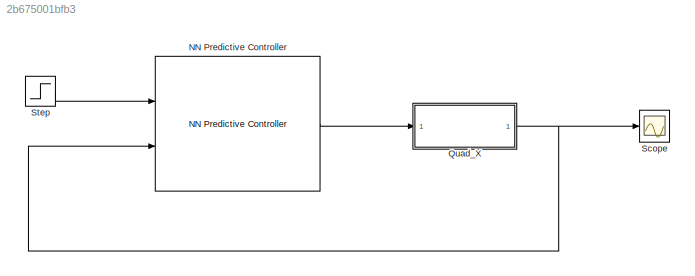
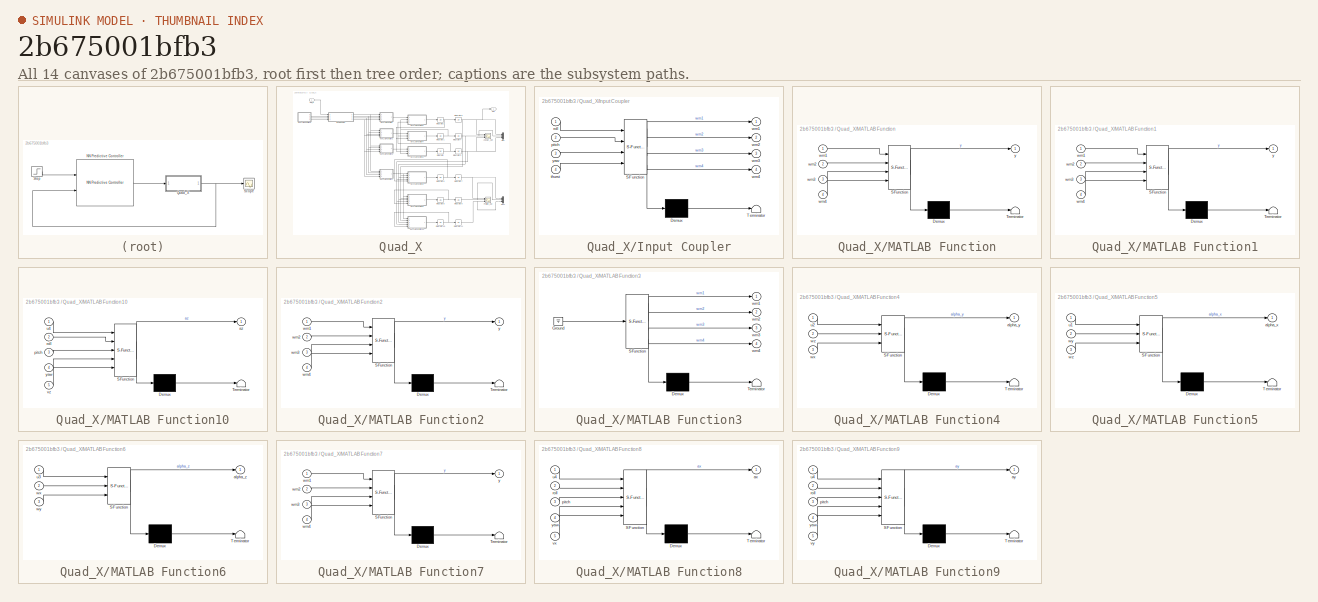
[diagram: thumbnail index - all 14 canvases of the model, root first then tree order]
MODEL slx_2b675001bfb3
KIND model
BLOCK [Reference] NN Predictive Controller  REF=neural/Control Systems/NN Predictive Controller
  B1 = [-0.033707570801635167;-0.47549596614413381;0.94594550137361211;-0.044475986989229097;-0.0056021811866312742;0.20269094438666568;0.029333788248414833;0.034120233153385485;-0.10477809021971642;0.022819986520979749;-0.00087034047782172917;0.071614354293789095;0.02306375039488753]
  B2 = 0.33893159470915019
  IW = [0.039998660620629928 0.054319765832510608;-0.010503535501637755 -0.019695859789655188;-0.017929844429394222 -0.017987719633573145;-0.15873458599410625 -0.23890856720996989;-0.13484413942787421 -0.045556897178475317;0.55199711251037986 0.19357513454006872;-0.056128979769489128 -0.058493866282012606;-0.050041935554247574 -0.058676958961361075;-0.51342226469245844 -0.16103467717091358;0.094238526031...<+157ch>
  LW1_2 = [-0.043314732256269188;-1.3295460339849443;-1.0162121533972843;0.0050899148605056252;-0.50042099070870627;-0.29434622763017254;0.035023037939621651;0.0388239235362587;0.0078823202382635755;-0.032637242251995033;-0.33184722281130602;0.017985074754463665;0.032846785601753907]
  LW2_1 = [-0.10107553326643129 -0.43152252561111648 -0.7651203191331083 -0.097639060643939693 -0.42820246096364367 -0.13049858893320174 0.1167072490731577 0.11487703456844785 -0.27200029396797054 -0.12790647778402289 0.26845125589846164 0.14095111255833445 0.09180920326466567]
  N2 = 4
  Ni = 2
  Nj = 1
  Normalize = 1
  Nu = 3
  Ports = [2, 1]
  S1 = 13
  SourceBlock = neural/Control Systems/NN Predictive Controller
  SourceType = NN Predictive Controller
  Ts = 0.01
  Use_Previous_Weights = 1
  Use_Testing = 1
  Use_validation = 1
  alpha = 0.002
  csrchfun = csrchbac
  epochs = 800
  limit_output = 0
  max_i = 1
  max_i_int = 0.1
  max_output = Inf
  maxiter = 2
  maxp = 0.99718677655187538
  maxt = 0.99718677655187538
  min_i = -1
  min_i_int = 0.005
  min_output = -Inf
  minp = -0.99375627128259669
  mint = -11.476882979154116
  rho = 0.05
  sam_training = 800
  sim_file = quad_x_model
  trainfun = trainbr
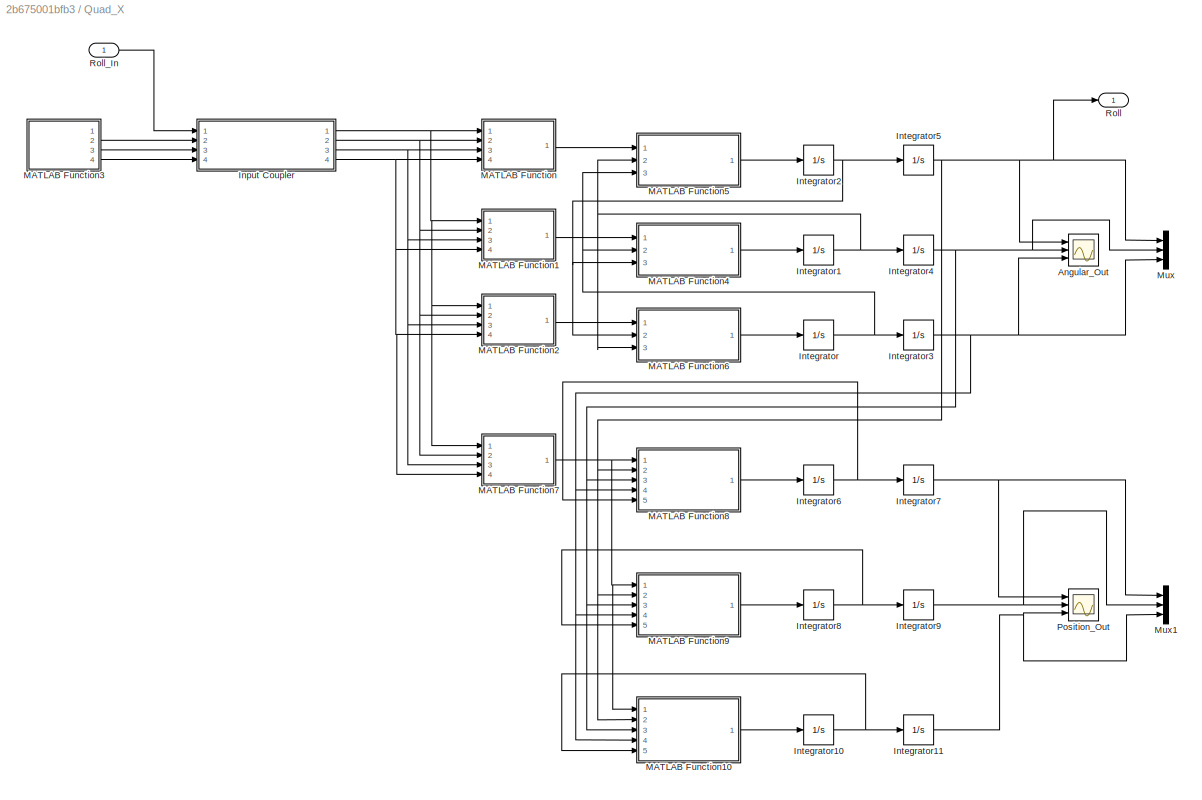
BLOCK [SubSystem] Quad_X
  Ports = [1, 1]
  RequestExecContextInheritance = off
  TreatAsAtomicUnit = on
BLOCK [Scope] Quad_X/Angular_Out
  Floating = off
  NumInputPorts = 3
  Ports = [3]
  ShowLegends = off
  YMax = 5~5~5
  YMin = -5~-5~-5
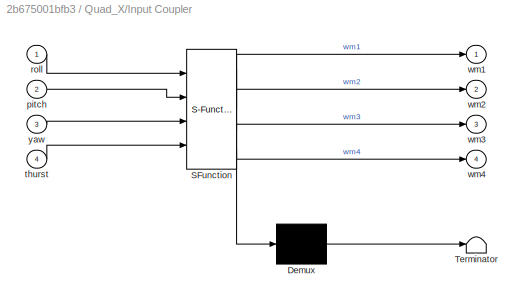
BLOCK [SubSystem] Quad_X/Input Coupler
  ErrorFcn = Stateflow.Translate.translate
  PermitHierarchicalResolution = ExplicitOnly
  Ports = [4, 4]
  RequestExecContextInheritance = off
  SFBlockType = MATLAB Function
  TreatAsAtomicUnit = on
BLOCK [Demux] Quad_X/Input Coupler/ Demux 
  Outputs = 1
  Ports = [1, 1]
BLOCK [S-Function] Quad_X/Input Coupler/ SFunction 
  EnableBusSupport = on
  FunctionName = sf_sfun
  PortCounts = [4 5]
  Ports = [4, 5]
  Tag = Stateflow S-Function quad_x_train 4
BLOCK [Terminator] Quad_X/Input Coupler/ Terminator 
BLOCK [Inport] Quad_X/Input Coupler/pitch
  IconDisplay = Port number
  Port = 2
BLOCK [Inport] Quad_X/Input Coupler/roll
  IconDisplay = Port number
BLOCK [Inport] Quad_X/Input Coupler/thurst
  IconDisplay = Port number
  Port = 4
BLOCK [Outport] Quad_X/Input Coupler/wm1
  IconDisplay = Port number
BLOCK [Outport] Quad_X/Input Coupler/wm2
  IconDisplay = Port number
  Port = 2
BLOCK [Outport] Quad_X/Input Coupler/wm3
  IconDisplay = Port number
  Port = 3
BLOCK [Outport] Quad_X/Input Coupler/wm4
  IconDisplay = Port number
  Port = 4
BLOCK [Inport] Quad_X/Input Coupler/yaw
  IconDisplay = Port number
  Port = 3
BLOCK [Integrator] Quad_X/Integrator
  Ports = [1, 1]
BLOCK [Integrator] Quad_X/Integrator1
  Ports = [1, 1]
BLOCK [Integrator] Quad_X/Integrator10
  Ports = [1, 1]
BLOCK [Integrator] Quad_X/Integrator11
  Ports = [1, 1]
BLOCK [Integrator] Quad_X/Integrator2
  Ports = [1, 1]
BLOCK [Integrator] Quad_X/Integrator3
  Ports = [1, 1]
BLOCK [Integrator] Quad_X/Integrator4
  Ports = [1, 1]
BLOCK [Integrator] Quad_X/Integrator5
  Ports = [1, 1]
BLOCK [Integrator] Quad_X/Integrator6
  Ports = [1, 1]
BLOCK [Integrator] Quad_X/Integrator7
  Ports = [1, 1]
BLOCK [Integrator] Quad_X/Integrator8
  Ports = [1, 1]
BLOCK [Integrator] Quad_X/Integrator9
  Ports = [1, 1]
BLOCK [SubSystem] Quad_X/MATLAB Function
  ErrorFcn = Stateflow.Translate.translate
  PermitHierarchicalResolution = ExplicitOnly
  Ports = [4, 1]
  RequestExecContextInheritance = off
  SFBlockType = MATLAB Function
  TreatAsAtomicUnit = on
BLOCK [Demux] Quad_X/MATLAB Function/ Demux 
  Outputs = 1
  Ports = [1, 1]
BLOCK [S-Function] Quad_X/MATLAB Function/ SFunction 
  EnableBusSupport = on
  FunctionName = sf_sfun
  PortCounts = [4 2]
  Ports = [4, 2]
  Tag = Stateflow S-Function quad_x_train 2
BLOCK [Terminator] Quad_X/MATLAB Function/ Terminator 
BLOCK [Inport] Quad_X/MATLAB Function/wm1
  IconDisplay = Port number
BLOCK [Inport] Quad_X/MATLAB Function/wm2
  IconDisplay = Port number
  Port = 2
BLOCK [Inport] Quad_X/MATLAB Function/wm3
  IconDisplay = Port number
  Port = 3
BLOCK [Inport] Quad_X/MATLAB Function/wm4
  IconDisplay = Port number
  Port = 4
BLOCK [Outport] Quad_X/MATLAB Function/y
  IconDisplay = Port number
BLOCK [SubSystem] Quad_X/MATLAB Function1
  ErrorFcn = Stateflow.Translate.translate
  PermitHierarchicalResolution = ExplicitOnly
  Ports = [4, 1]
  RequestExecContextInheritance = off
  SFBlockType = MATLAB Function
  TreatAsAtomicUnit = on
BLOCK [Demux] Quad_X/MATLAB Function1/ Demux 
  Outputs = 1
  Ports = [1, 1]
BLOCK [S-Function] Quad_X/MATLAB Function1/ SFunction 
  EnableBusSupport = on
  FunctionName = sf_sfun
  PortCounts = [4 2]
  Ports = [4, 2]
  Tag = Stateflow S-Function quad_x_train 1
BLOCK [Terminator] Quad_X/MATLAB Function1/ Terminator 
BLOCK [Inport] Quad_X/MATLAB Function1/wm1
  IconDisplay = Port number
BLOCK [Inport] Quad_X/MATLAB Function1/wm2
  IconDisplay = Port number
  Port = 2
BLOCK [Inport] Quad_X/MATLAB Function1/wm3
  IconDisplay = Port number
  Port = 3
BLOCK [Inport] Quad_X/MATLAB Function1/wm4
  IconDisplay = Port number
  Port = 4
BLOCK [Outport] Quad_X/MATLAB Function1/y
  IconDisplay = Port number
BLOCK [SubSystem] Quad_X/MATLAB Function10
  ErrorFcn = Stateflow.Translate.translate
  PermitHierarchicalResolution = ExplicitOnly
  Ports = [5, 1]
  RequestExecContextInheritance = off
  SFBlockType = MATLAB Function
  TreatAsAtomicUnit = on
BLOCK [Demux] Quad_X/MATLAB Function10/ Demux 
  Outputs = 1
  Ports = [1, 1]
BLOCK [S-Function] Quad_X/MATLAB Function10/ SFunction 
  EnableBusSupport = on
  FunctionName = sf_sfun
  PortCounts = [5 2]
  Ports = [5, 2]
  Tag = Stateflow S-Function quad_x_train 11
BLOCK [Terminator] Quad_X/MATLAB Function10/ Terminator 
BLOCK [Outport] Quad_X/MATLAB Function10/az
  IconDisplay = Port number
BLOCK [Inport] Quad_X/MATLAB Function10/pitch
  IconDisplay = Port number
  Port = 3
BLOCK [Inport] Quad_X/MATLAB Function10/roll
  IconDisplay = Port number
  Port = 2
BLOCK [Inport] Quad_X/MATLAB Function10/u4
  IconDisplay = Port number
BLOCK [Inport] Quad_X/MATLAB Function10/vz
  IconDisplay = Port number
  Port = 5
BLOCK [Inport] Quad_X/MATLAB Function10/yaw
  IconDisplay = Port number
  Port = 4
BLOCK [SubSystem] Quad_X/MATLAB Function2
  ErrorFcn = Stateflow.Translate.translate
  PermitHierarchicalResolution = ExplicitOnly
  Ports = [4, 1]
  RequestExecContextInheritance = off
  SFBlockType = MATLAB Function
  TreatAsAtomicUnit = on
BLOCK [Demux] Quad_X/MATLAB Function2/ Demux 
  Outputs = 1
  Ports = [1, 1]
BLOCK [S-Function] Quad_X/MATLAB Function2/ SFunction 
  EnableBusSupport = on
  FunctionName = sf_sfun
  PortCounts = [4 2]
  Ports = [4, 2]
  Tag = Stateflow S-Function quad_x_train 3
BLOCK [Terminator] Quad_X/MATLAB Function2/ Terminator 
BLOCK [Inport] Quad_X/MATLAB Function2/wm1
  IconDisplay = Port number
BLOCK [Inport] Quad_X/MATLAB Function2/wm2
  IconDisplay = Port number
  Port = 2
BLOCK [Inport] Quad_X/MATLAB Function2/wm3
  IconDisplay = Port number
  Port = 3
BLOCK [Inport] Quad_X/MATLAB Function2/wm4
  IconDisplay = Port number
  Port = 4
BLOCK [Outport] Quad_X/MATLAB Function2/y
  IconDisplay = Port number
BLOCK [SubSystem] Quad_X/MATLAB Function3
  ErrorFcn = Stateflow.Translate.translate
  PermitHierarchicalResolution = ExplicitOnly
  Ports = [0, 4]
  RequestExecContextInheritance = off
  SFBlockType = MATLAB Function
  TreatAsAtomicUnit = on
BLOCK [Demux] Quad_X/MATLAB Function3/ Demux 
  Outputs = 1
  Ports = [1, 1]
BLOCK [Ground] Quad_X/MATLAB Function3/ Ground 
BLOCK [S-Function] Quad_X/MATLAB Function3/ SFunction 
  EnableBusSupport = on
  FunctionName = sf_sfun
  PortCounts = [1 5]
  Ports = [1, 5]
  Tag = Stateflow S-Function quad_x_train 12
BLOCK [Terminator] Quad_X/MATLAB Function3/ Terminator 
BLOCK [Outport] Quad_X/MATLAB Function3/wm1
  IconDisplay = Port number
BLOCK [Outport] Quad_X/MATLAB Function3/wm2
  IconDisplay = Port number
  Port = 2
BLOCK [Outport] Quad_X/MATLAB Function3/wm3
  IconDisplay = Port number
  Port = 3
BLOCK [Outport] Quad_X/MATLAB Function3/wm4
  IconDisplay = Port number
  Port = 4
BLOCK [SubSystem] Quad_X/MATLAB Function4
  ErrorFcn = Stateflow.Translate.translate
  PermitHierarchicalResolution = ExplicitOnly
  Ports = [3, 1]
  RequestExecContextInheritance = off
  SFBlockType = MATLAB Function
  TreatAsAtomicUnit = on
BLOCK [Demux] Quad_X/MATLAB Function4/ Demux 
  Outputs = 1
  Ports = [1, 1]
BLOCK [S-Function] Quad_X/MATLAB Function4/ SFunction 
  EnableBusSupport = on
  FunctionName = sf_sfun
  PortCounts = [3 2]
  Ports = [3, 2]
  Tag = Stateflow S-Function quad_x_train 5
BLOCK [Terminator] Quad_X/MATLAB Function4/ Terminator 
BLOCK [Outport] Quad_X/MATLAB Function4/alpha_y
  IconDisplay = Port number
BLOCK [Inport] Quad_X/MATLAB Function4/u2
  IconDisplay = Port number
BLOCK [Inport] Quad_X/MATLAB Function4/wx
  IconDisplay = Port number
  Port = 3
BLOCK [Inport] Quad_X/MATLAB Function4/wz
  IconDisplay = Port number
  Port = 2
BLOCK [SubSystem] Quad_X/MATLAB Function5
  ErrorFcn = Stateflow.Translate.translate
  PermitHierarchicalResolution = ExplicitOnly
  Ports = [3, 1]
  RequestExecContextInheritance = off
  SFBlockType = MATLAB Function
  TreatAsAtomicUnit = on
BLOCK [Demux] Quad_X/MATLAB Function5/ Demux 
  Outputs = 1
  Ports = [1, 1]
BLOCK [S-Function] Quad_X/MATLAB Function5/ SFunction 
  EnableBusSupport = on
  FunctionName = sf_sfun
  PortCounts = [3 2]
  Ports = [3, 2]
  Tag = Stateflow S-Function quad_x_train 6
BLOCK [Terminator] Quad_X/MATLAB Function5/ Terminator 
BLOCK [Outport] Quad_X/MATLAB Function5/alpha_x
  IconDisplay = Port number
BLOCK [Inport] Quad_X/MATLAB Function5/u1
  IconDisplay = Port number
BLOCK [Inport] Quad_X/MATLAB Function5/wy
  IconDisplay = Port number
  Port = 2
BLOCK [Inport] Quad_X/MATLAB Function5/wz
  IconDisplay = Port number
  Port = 3
BLOCK [SubSystem] Quad_X/MATLAB Function6
  ErrorFcn = Stateflow.Translate.translate
  PermitHierarchicalResolution = ExplicitOnly
  Ports = [3, 1]
  RequestExecContextInheritance = off
  SFBlockType = MATLAB Function
  TreatAsAtomicUnit = on
BLOCK [Demux] Quad_X/MATLAB Function6/ Demux 
  Outputs = 1
  Ports = [1, 1]
BLOCK [S-Function] Quad_X/MATLAB Function6/ SFunction 
  EnableBusSupport = on
  FunctionName = sf_sfun
  PortCounts = [3 2]
  Ports = [3, 2]
  Tag = Stateflow S-Function quad_x_train 7
BLOCK [Terminator] Quad_X/MATLAB Function6/ Terminator 
BLOCK [Outport] Quad_X/MATLAB Function6/alpha_z
  IconDisplay = Port number
BLOCK [Inport] Quad_X/MATLAB Function6/u3
  IconDisplay = Port number
BLOCK [Inport] Quad_X/MATLAB Function6/wx
  IconDisplay = Port number
  Port = 2
BLOCK [Inport] Quad_X/MATLAB Function6/wy
  IconDisplay = Port number
  Port = 3
BLOCK [SubSystem] Quad_X/MATLAB Function7
  ErrorFcn = Stateflow.Translate.translate
  PermitHierarchicalResolution = ExplicitOnly
  Ports = [4, 1]
  RequestExecContextInheritance = off
  SFBlockType = MATLAB Function
  TreatAsAtomicUnit = on
BLOCK [Demux] Quad_X/MATLAB Function7/ Demux 
  Outputs = 1
  Ports = [1, 1]
BLOCK [S-Function] Quad_X/MATLAB Function7/ SFunction 
  EnableBusSupport = on
  FunctionName = sf_sfun
  PortCounts = [4 2]
  Ports = [4, 2]
  Tag = Stateflow S-Function quad_x_train 8
BLOCK [Terminator] Quad_X/MATLAB Function7/ Terminator 
BLOCK [Inport] Quad_X/MATLAB Function7/wm1
  IconDisplay = Port number
BLOCK [Inport] Quad_X/MATLAB Function7/wm2
  IconDisplay = Port number
  Port = 2
BLOCK [Inport] Quad_X/MATLAB Function7/wm3
  IconDisplay = Port number
  Port = 3
BLOCK [Inport] Quad_X/MATLAB Function7/wm4
  IconDisplay = Port number
  Port = 4
BLOCK [Outport] Quad_X/MATLAB Function7/y
  IconDisplay = Port number
BLOCK [SubSystem] Quad_X/MATLAB Function8
  ErrorFcn = Stateflow.Translate.translate
  PermitHierarchicalResolution = ExplicitOnly
  Ports = [5, 1]
  RequestExecContextInheritance = off
  SFBlockType = MATLAB Function
  TreatAsAtomicUnit = on
BLOCK [Demux] Quad_X/MATLAB Function8/ Demux 
  Outputs = 1
  Ports = [1, 1]
BLOCK [S-Function] Quad_X/MATLAB Function8/ SFunction 
  EnableBusSupport = on
  FunctionName = sf_sfun
  PortCounts = [5 2]
  Ports = [5, 2]
  Tag = Stateflow S-Function quad_x_train 9
BLOCK [Terminator] Quad_X/MATLAB Function8/ Terminator 
BLOCK [Outport] Quad_X/MATLAB Function8/ax
  IconDisplay = Port number
BLOCK [Inport] Quad_X/MATLAB Function8/pitch
  IconDisplay = Port number
  Port = 3
BLOCK [Inport] Quad_X/MATLAB Function8/roll
  IconDisplay = Port number
  Port = 2
BLOCK [Inport] Quad_X/MATLAB Function8/u4
  IconDisplay = Port number
BLOCK [Inport] Quad_X/MATLAB Function8/vx
  IconDisplay = Port number
  Port = 5
BLOCK [Inport] Quad_X/MATLAB Function8/yaw
  IconDisplay = Port number
  Port = 4
BLOCK [SubSystem] Quad_X/MATLAB Function9
  ErrorFcn = Stateflow.Translate.translate
  PermitHierarchicalResolution = ExplicitOnly
  Ports = [5, 1]
  RequestExecContextInheritance = off
  SFBlockType = MATLAB Function
  TreatAsAtomicUnit = on
BLOCK [Demux] Quad_X/MATLAB Function9/ Demux 
  Outputs = 1
  Ports = [1, 1]
BLOCK [S-Function] Quad_X/MATLAB Function9/ SFunction 
  EnableBusSupport = on
  FunctionName = sf_sfun
  PortCounts = [5 2]
  Ports = [5, 2]
  Tag = Stateflow S-Function quad_x_train 10
BLOCK [Terminator] Quad_X/MATLAB Function9/ Terminator 
BLOCK [Outport] Quad_X/MATLAB Function9/ay
  IconDisplay = Port number
BLOCK [Inport] Quad_X/MATLAB Function9/pitch
  IconDisplay = Port number
  Port = 3
BLOCK [Inport] Quad_X/MATLAB Function9/roll
  IconDisplay = Port number
  Port = 2
BLOCK [Inport] Quad_X/MATLAB Function9/u4
  IconDisplay = Port number
BLOCK [Inport] Quad_X/MATLAB Function9/vy
  IconDisplay = Port number
  Port = 5
BLOCK [Inport] Quad_X/MATLAB Function9/yaw
  IconDisplay = Port number
  Port = 4
BLOCK [Mux] Quad_X/Mux
  DisplayOption = bar
  Inputs = 3
  Ports = [3, 1]
BLOCK [Mux] Quad_X/Mux1
  DisplayOption = bar
  Inputs = 3
  Ports = [3, 1]
BLOCK [Scope] Quad_X/Position_Out 
  Floating = off
  NumInputPorts = 3
  Ports = [3]
  SaveName = ScopeData1
  ShowLegends = off
  YMax = 5~5~5
  YMin = -5~-5~-5
BLOCK [Outport] Quad_X/Roll
  IconDisplay = Port number
BLOCK [Inport] Quad_X/Roll_In
  IconDisplay = Port number
BLOCK [Scope] Scope
  Floating = off
  NumInputPorts = 1
  Ports = [1]
  SaveName = ScopeData2
  ShowLegends = off
BLOCK [Step] Step
  SampleTime = 0
LINE NN Predictive Controller:1 -> Quad_X:1
NET Quad_X/Input Coupler:1 -> Quad_X/MATLAB Function1:1, Quad_X/MATLAB Function2:1, Quad_X/MATLAB Function7:1, Quad_X/MATLAB Function:1
NET Quad_X/Input Coupler:2 -> Quad_X/MATLAB Function1:2, Quad_X/MATLAB Function2:2, Quad_X/MATLAB Function7:2, Quad_X/MATLAB Function:2
NET Quad_X/Input Coupler:3 -> Quad_X/MATLAB Function1:3, Quad_X/MATLAB Function2:3, Quad_X/MATLAB Function7:3, Quad_X/MATLAB Function:3
NET Quad_X/Input Coupler:4 -> Quad_X/MATLAB Function1:4, Quad_X/MATLAB Function2:4, Quad_X/MATLAB Function7:4, Quad_X/MATLAB Function:4
NET Quad_X/Integrator10:1 -> Quad_X/Integrator11:1, Quad_X/MATLAB Function10:5
NET Quad_X/Integrator11:1 -> Quad_X/Mux1:3, Quad_X/Position_Out :3
NET Quad_X/Integrator1:1 -> Quad_X/Integrator4:1, Quad_X/MATLAB Function5:2, Quad_X/MATLAB Function6:3
NET Quad_X/Integrator2:1 -> Quad_X/Integrator5:1, Quad_X/MATLAB Function4:3, Quad_X/MATLAB Function6:2
NET Quad_X/Integrator3:1 -> Quad_X/Angular_Out:3, Quad_X/MATLAB Function10:4, Quad_X/MATLAB Function8:4, Quad_X/MATLAB Function9:4, Quad_X/Mux:3
NET Quad_X/Integrator4:1 -> Quad_X/Angular_Out:2, Quad_X/MATLAB Function10:3, Quad_X/MATLAB Function8:3, Quad_X/MATLAB Function9:3, Quad_X/Mux:2
NET Quad_X/Integrator5:1 -> Quad_X/Angular_Out:1, Quad_X/MATLAB Function10:2, Quad_X/MATLAB Function8:2, Quad_X/MATLAB Function9:2, Quad_X/Mux:1, Quad_X/Roll:1
NET Quad_X/Integrator6:1 -> Quad_X/Integrator7:1, Quad_X/MATLAB Function8:5
NET Quad_X/Integrator7:1 -> Quad_X/Mux1:1, Quad_X/Position_Out :1
NET Quad_X/Integrator8:1 -> Quad_X/Integrator9:1, Quad_X/MATLAB Function9:5
NET Quad_X/Integrator9:1 -> Quad_X/Mux1:2, Quad_X/Position_Out :2
NET Quad_X/Integrator:1 -> Quad_X/Integrator3:1, Quad_X/MATLAB Function4:2, Quad_X/MATLAB Function5:3
LINE Quad_X/MATLAB Function10:1 -> Quad_X/Integrator10:1
LINE Quad_X/MATLAB Function1:1 -> Quad_X/MATLAB Function4:1
LINE Quad_X/MATLAB Function2:1 -> Quad_X/MATLAB Function6:1
LINE Quad_X/MATLAB Function3:2 -> Quad_X/Input Coupler:2
LINE Quad_X/MATLAB Function3:3 -> Quad_X/Input Coupler:3
LINE Quad_X/MATLAB Function3:4 -> Quad_X/Input Coupler:4
LINE Quad_X/MATLAB Function4:1 -> Quad_X/Integrator1:1
LINE Quad_X/MATLAB Function5:1 -> Quad_X/Integrator2:1
LINE Quad_X/MATLAB Function6:1 -> Quad_X/Integrator:1
NET Quad_X/MATLAB Function7:1 -> Quad_X/MATLAB Function10:1, Quad_X/MATLAB Function8:1, Quad_X/MATLAB Function9:1
LINE Quad_X/MATLAB Function8:1 -> Quad_X/Integrator6:1
LINE Quad_X/MATLAB Function9:1 -> Quad_X/Integrator8:1
LINE Quad_X/MATLAB Function:1 -> Quad_X/MATLAB Function5:1
LINE Quad_X/Roll_In:1 -> Quad_X/Input Coupler:1
NET Quad_X:1 -> NN Predictive Controller:2, Scope:1
LINE Step:1 -> NN Predictive Controller:1
note: NET lines group one-source signal fan-out (src -> all destinations, sorted); 1:1 wires keep LINE
CHART Quad_X/MATLAB Function1 states=1 transitions=1
  STATE_LABEL 'eML_blk_kernel()'
  STATE_LABEL 'SCRIPT:\nfunction y = u2(wm1, wm2, wm3, wm4)\n%#codegen\n\nk1 = 3.1 * 10^-7;\ny = k1 * (wm2^2 + wm4^2 - wm1^2 - wm3^2);\nreturn;'
CHART Quad_X/MATLAB Function states=1 transitions=1
  STATE_LABEL 'eML_blk_kernel()'
  STATE_LABEL 'SCRIPT:\nfunction y = u1(wm1, wm2, wm3, wm4)\n%#codegen\n\nk1 = 3.1 * 10^-7;\ny = k1 * (wm2^2 + wm3^2 - wm1^2 - wm4^2);\nreturn;'
CHART Quad_X/MATLAB Function2 states=1 transitions=1
  STATE_LABEL 'eML_blk_kernel()'
  STATE_LABEL 'SCRIPT:\nfunction y = u3(wm1, wm2, wm3, wm4)\n%#codegen\n\nk2 = 3.1 * 10^-7;\ny = k2 * (wm1^2 + wm2^2 - wm3^2 - wm4^2);\nreturn;'
CHART Quad_X/Input Coupler states=1 transitions=1
  STATE_LABEL 'eML_blk_kernel()'
  STATE_LABEL 'SCRIPT:\nfunction [wm1, wm2, wm3, wm4] = input_coupler(roll, pitch, yaw, thurst)\n%#codegen\n\n% 控制耦合\n% 输入是归一化的，-1~1\n\n% 基础输入 1000\nthurst_bias = 1407;\n\n% 去归一化\nroll  = roll  * 500;\npitch = pitch * 500;\nyaw   = yaw   * 500;\nthurst = thurst * 1000;\n\nwm1 = thurst + thurst_bias - roll - pitch + yaw;\nwm2 = thurst + thurst_bias + roll + pitch + yaw;\nwm3 = thurst + thurst_bias + roll - pitch - yaw;\nwm4 = thurs...<+47ch>'
CHART Quad_X/MATLAB Function4 states=1 transitions=1
  STATE_LABEL 'eML_blk_kernel()'
  STATE_LABEL 'SCRIPT:\nfunction alpha_y = calc_pitch_a(u2, wz, wx)\n%#codegen\n\nl = 0.25;\nJx = 0.033;\nJy = 0.033;\nJz = 0.061;\n\nalpha_y = u2 * (sqrt(2) / 2) * l + (Jz - Jx) * wz * wx;\nalpha_y = alpha_y / Jy;\n\n\nreturn;'
CHART Quad_X/MATLAB Function5 states=1 transitions=1
  STATE_LABEL 'eML_blk_kernel()'
  STATE_LABEL 'SCRIPT:\nfunction alpha_x = calc_roll_a(u1, wy, wz)\n%#codegen\n\nl = 0.25;\nJx = 0.033;\nJy = 0.033;\nJz = 0.061;\n\nalpha_x = u1 * (sqrt(2) / 2) * l + (Jy - Jz) * wy * wz;\nalpha_x = alpha_x / Jx;\n\n\nreturn;'
CHART Quad_X/MATLAB Function6 states=1 transitions=1
  STATE_LABEL 'eML_blk_kernel()'
  STATE_LABEL 'SCRIPT:\nfunction alpha_z = calc_yaw_a(u3, wx, wy)\n%#codegen\n\nl = 0.25;\nJx = 0.033;\nJy = 0.033;\nJz = 0.061;\n\nalpha_z = u3 * l + (Jx - Jy) * wx * wy;\nalpha_z = alpha_z / Jz;\n\n\nreturn;'
CHART Quad_X/MATLAB Function7 states=1 transitions=1
  STATE_LABEL 'eML_blk_kernel()'
  STATE_LABEL 'SCRIPT:\nfunction y = u4(wm1, wm2, wm3, wm4)\n%#codegen\n\nk1 = 3.1 * 10^-7;\ny = k1 * (wm1^2 + wm2^2 + wm3^2 + wm4^2);\nreturn;'
CHART Quad_X/MATLAB Function8 states=1 transitions=1
  STATE_LABEL 'eML_blk_kernel()'
  STATE_LABEL 'SCRIPT:\nfunction ax = calc_ax(u4, roll, pitch, yaw, vx)\n%#codegen\n% roll  -> alpha\n% pitch -> beta\n% yaw   -> gamma\n\nm  = 0.25;\ng  = 9.81;\nkf = 0;\n\nax = u4 * (sin(roll) * sin(yaw) + cos(roll) * sin(pitch) * cos(yaw));\nax = ax - kf * vx;\nax = ax / m;\n\nreturn;'
CHART Quad_X/MATLAB Function9 states=1 transitions=1
  STATE_LABEL 'eML_blk_kernel()'
  STATE_LABEL 'SCRIPT:\nfunction ay = calc_ay(u4, roll, pitch, yaw, vy)\n%#codegen\n% roll  -> alpha\n% pitch -> beta\n% yaw   -> gamma\n\nm  = 0.25;\ng  = 9.81;\nkf = 0;\n\nay = u4 * (-sin(roll) * cos(yaw) + cos(roll) * sin(pitch) * sin(yaw));\nay = ay - kf * vy;\nay = ay / m;\n\nreturn;'
CHART Quad_X/MATLAB Function10 states=1 transitions=1
  STATE_LABEL 'eML_blk_kernel()'
  STATE_LABEL 'SCRIPT:\nfunction az = calc_az(u4, roll, pitch, yaw, vz)\n%#codegen\n% roll  -> alpha\n% pitch -> beta\n% yaw   -> gamma\n\nm  = 0.25;\ng  = 9.81;\nkf = 0;\n\naz = u4 * (cos(roll) * cos(pitch));\naz = az / m - g;\n\nreturn;'
CHART Quad_X/MATLAB Function3 states=1 transitions=1
  STATE_LABEL 'eML_blk_kernel()'
  STATE_LABEL 'SCRIPT:\nfunction [wm1, wm2, wm3, wm4] = fcn\n%#codegen\n\n% 1406 - 1407平飞\n\nwm1 = 0;\nwm2 = 0;\nwm3 = 0;\nwm4 = 0;'
